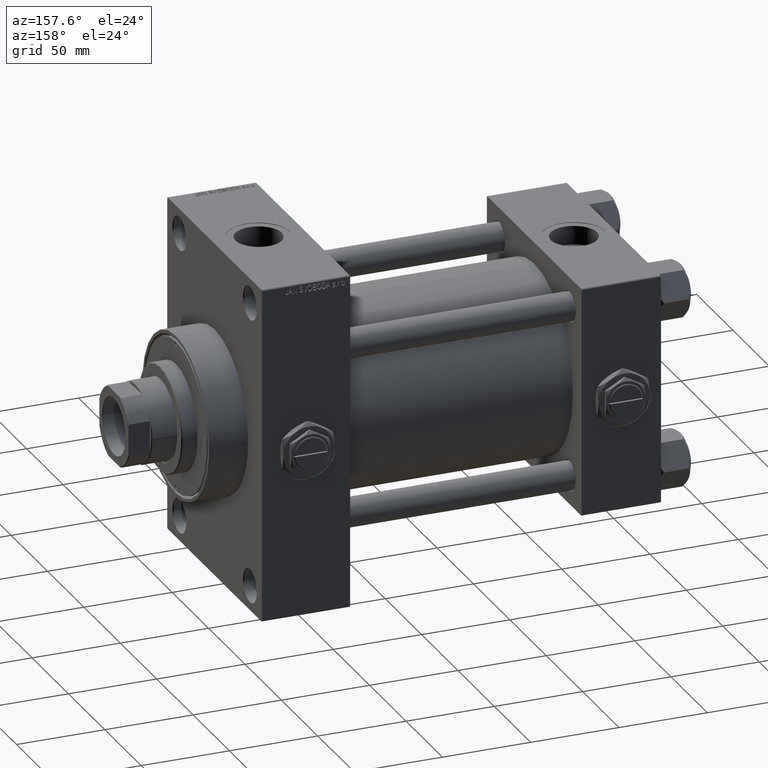
[diagram: clean part render]
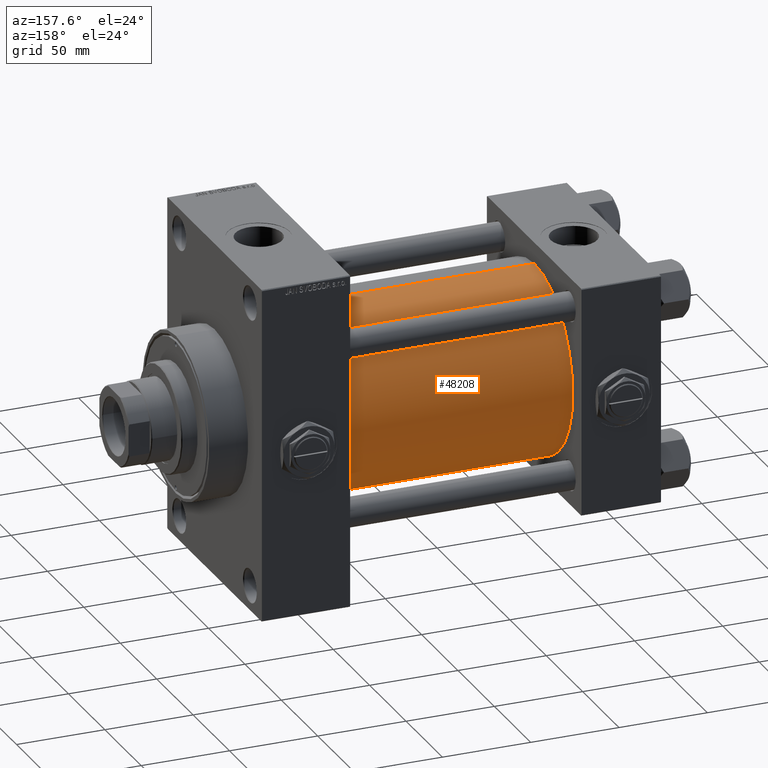
[diagram: same view with one face highlighted and labeled with its STEP entity id]
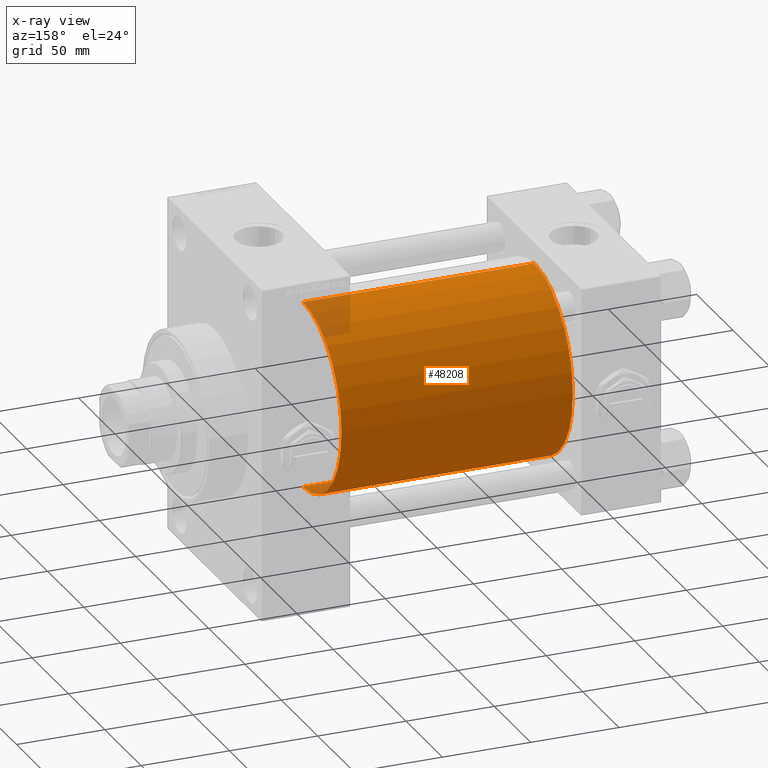
[diagram: x-ray of the same camera — body ghosted, the highlighted face saturated]
A machine part, auxiliary view. The second image highlights one B-rep face of the part: STEP entity #48208.
The next image is the same camera in x-ray: the body ghosted, the highlighted face saturated — about 4% of this face is hidden behind the body in this view.
In plain terms, the highlighted cylindrical surface (partial cylindrical patch) has radius 53 mm, axis along (-1, -0, -0).
Its self-contained STEP definition (entity closure, byte-faithful):
#381 = CARTESIAN_POINT ( 'NONE',  ( 44.99999999999998579, -2.602085213965210642E-15, 53.00000000000000711 ) ) ;
#878 = FACE_OUTER_BOUND ( 'NONE', #27318, .T. ) ;
#1361 = VERTEX_POINT ( 'NONE', #4121 ) ;
#1436 = AXIS2_PLACEMENT_3D ( 'NONE', #27710, #46405, #27464 ) ;
#3575 = ORIENTED_EDGE ( 'NONE', *, *, #41030, .T. ) ;
#4121 = CARTESIAN_POINT ( 'NONE',  ( 176.0000000000000000, -2.602085213965210642E-15, 53.00000000000000711 ) ) ;
#4950 = CIRCLE ( 'NONE', #38051, 53.00000000000000711 ) ;
#6543 = DIRECTION ( 'NONE',  ( -1.000000000000000000, -0.000000000000000000, -0.000000000000000000 ) ) ;
#8932 = ORIENTED_EDGE ( 'NONE', *, *, #30254, .F. ) ;
#10064 = VECTOR ( 'NONE', #6543, 1000.000000000000000 ) ;
#10739 = VECTOR ( 'NONE', #16167, 1000.000000000000000 ) ;
#11037 = EDGE_CURVE ( 'NONE', #1361, #32477, #30645, .T. ) ;
#13731 = VERTEX_POINT ( 'NONE', #30127 ) ;
#16167 = DIRECTION ( 'NONE',  ( -1.000000000000000000, -0.000000000000000000, -0.000000000000000000 ) ) ;
#16901 = CARTESIAN_POINT ( 'NONE',  ( 176.0000000000000000, -2.602085213965210642E-15, 0.000000000000000000 ) ) ;
#20303 = VERTEX_POINT ( 'NONE', #35779 ) ;
#21670 = DIRECTION ( 'NONE',  ( 1.000000000000000000, -0.000000000000000000, 0.000000000000000000 ) ) ;
#22476 = LINE ( 'NONE', #26534, #10064 ) ;
#23759 = CARTESIAN_POINT ( 'NONE',  ( 176.0000000000000000, -2.602085213965210642E-15, 53.00000000000000711 ) ) ;
#25306 = AXIS2_PLACEMENT_3D ( 'NONE', #40878, #21670, #41887 ) ;
#25475 = ORIENTED_EDGE ( 'NONE', *, *, #38039, .T. ) ;
#26534 = CARTESIAN_POINT ( 'NONE',  ( 176.0000000000000000, 3.888542821515762466E-15, -53.00000000000000711 ) ) ;
#27318 = EDGE_LOOP ( 'NONE', ( #8932, #3575, #25475, #37515 ) ) ;
#27464 = DIRECTION ( 'NONE',  ( 0.000000000000000000, 0.000000000000000000, 1.000000000000000000 ) ) ;
#27710 = CARTESIAN_POINT ( 'NONE',  ( 176.0000000000000000, -2.602085213965210642E-15, 0.000000000000000000 ) ) ;
#30127 = CARTESIAN_POINT ( 'NONE',  ( 44.99999999999998579, 3.888542821515762466E-15, -53.00000000000000711 ) ) ;
#30254 = EDGE_CURVE ( 'NONE', #20303, #1361, #4950, .T. ) ;
#30645 = LINE ( 'NONE', #23759, #10739 ) ;
#32477 = VERTEX_POINT ( 'NONE', #381 ) ;
#34567 = CYLINDRICAL_SURFACE ( 'NONE', #1436, 53.00000000000000711 ) ;
#35779 = CARTESIAN_POINT ( 'NONE',  ( 176.0000000000000000, 3.888542821515762466E-15, -53.00000000000000711 ) ) ;
#37515 = ORIENTED_EDGE ( 'NONE', *, *, #11037, .F. ) ;
#38039 = EDGE_CURVE ( 'NONE', #13731, #32477, #43875, .T. ) ;
#38051 = AXIS2_PLACEMENT_3D ( 'NONE', #16901, #44956, #44702 ) ;
#40878 = CARTESIAN_POINT ( 'NONE',  ( 44.99999999999998579, -2.602085213965210642E-15, 0.000000000000000000 ) ) ;
#41030 = EDGE_CURVE ( 'NONE', #20303, #13731, #22476, .T. ) ;
#41887 = DIRECTION ( 'NONE',  ( 0.000000000000000000, 0.000000000000000000, 1.000000000000000000 ) ) ;
#43875 = CIRCLE ( 'NONE', #25306, 53.00000000000000711 ) ;
#44702 = DIRECTION ( 'NONE',  ( 0.000000000000000000, 0.000000000000000000, -1.000000000000000000 ) ) ;
#44956 = DIRECTION ( 'NONE',  ( 1.000000000000000000, 0.000000000000000000, 0.000000000000000000 ) ) ;
#46405 = DIRECTION ( 'NONE',  ( -1.000000000000000000, -0.000000000000000000, -0.000000000000000000 ) ) ;
#48208 = ADVANCED_FACE ( 'NONE', ( #878 ), #34567, .T. ) ;